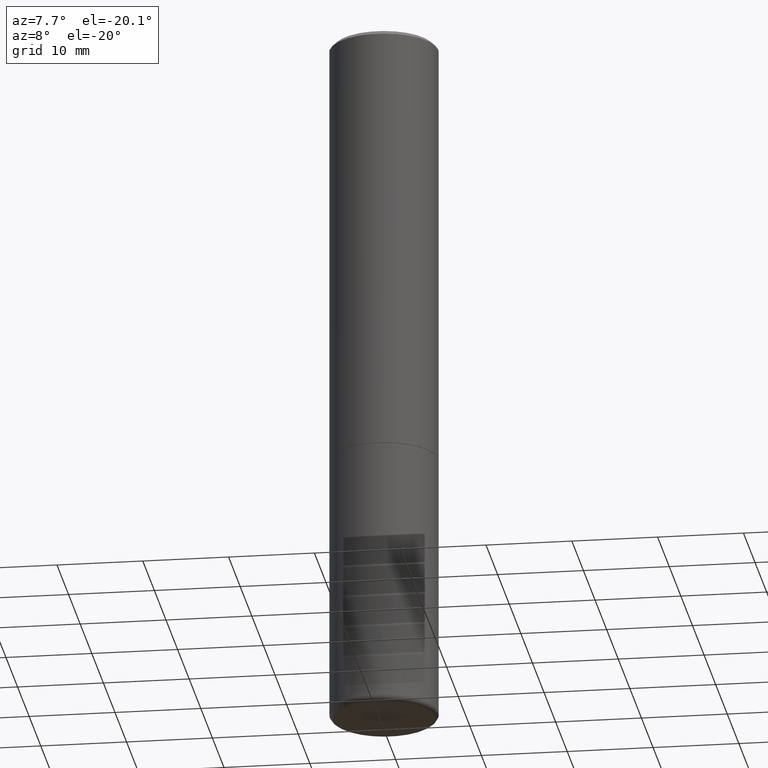
[diagram: clean part render]
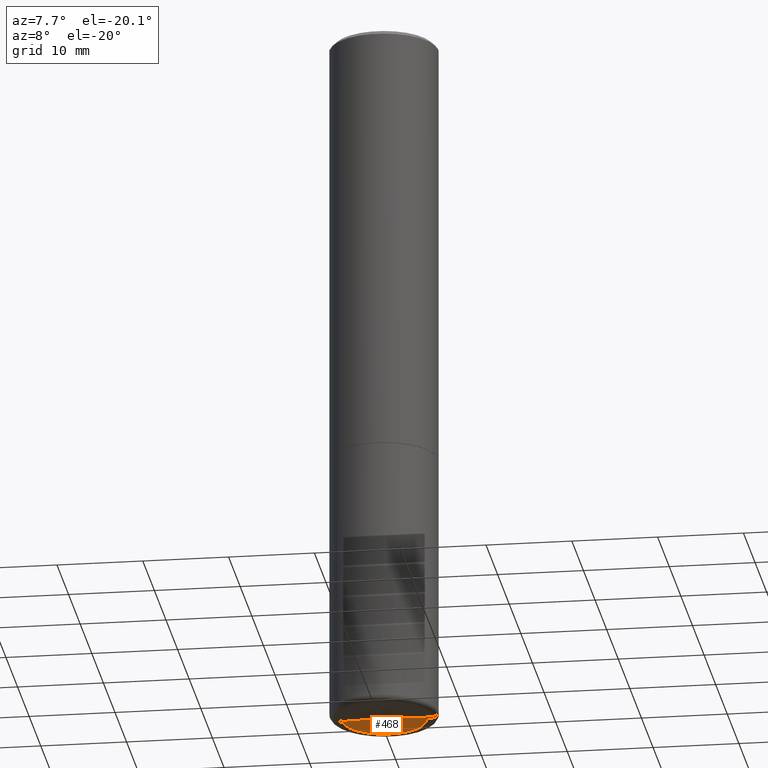
[diagram: same view with one face highlighted and labeled with its STEP entity id]
A machine part, auxiliary view. The second image highlights one B-rep face of the part: STEP entity #468.
In plain terms, the highlighted conical surface has half-angle 88 deg.
Its self-contained STEP definition (entity closure, byte-faithful):
#16 = EDGE_CURVE ( 'NONE', #115, #35, #80, .T. ) ;
#33 = CARTESIAN_POINT ( 'NONE',  ( 7.947204554791619182E-29, -1.134650187679537143E-14, -3.249767298070359800 ) ) ;
#35 = VERTEX_POINT ( 'NONE', #85 ) ;
#37 = ORIENTED_EDGE ( 'NONE', *, *, #16, .F. ) ;
#46 = DIRECTION ( 'NONE',  ( -2.445468806185136597E-29, 3.491481338843145583E-15, 1.000000000000000000 ) ) ;
#61 = DIRECTION ( 'NONE',  ( -0.9993908270190957621, 6.856857904024556470E-15, -0.03489949670250108021 ) ) ;
#66 = DIRECTION ( 'NONE',  ( 2.445468806185136597E-29, -3.491481338843145583E-15, -1.000000000000000000 ) ) ;
#67 = EDGE_LOOP ( 'NONE', ( #178, #361, #37 ) ) ;
#72 = LINE ( 'NONE', #269, #291 ) ;
#73 = VERTEX_POINT ( 'NONE', #474 ) ;
#77 = VECTOR ( 'NONE', #412, 39.37007874015748143 ) ;
#80 = CIRCLE ( 'NONE', #172, 0.1930732039350490925 ) ;
#85 = CARTESIAN_POINT ( 'NONE',  ( -0.1930732039350490925, -9.998278899655613929E-15, -3.249767298070359800 ) ) ;
#115 = VERTEX_POINT ( 'NONE', #201 ) ;
#172 = AXIS2_PLACEMENT_3D ( 'NONE', #459, #46, #233 ) ;
#178 = ORIENTED_EDGE ( 'NONE', *, *, #320, .F. ) ;
#201 = CARTESIAN_POINT ( 'NONE',  ( 0.1930732039350490925, -1.267108020581510942E-14, -3.249767298070359800 ) ) ;
#211 = DIRECTION ( 'NONE',  ( -1.000000000000000000, 6.982962677686269866E-15, 0.000000000000000000 ) ) ;
#225 = FACE_OUTER_BOUND ( 'NONE', #67, .T. ) ;
#233 = DIRECTION ( 'NONE',  ( 1.000000000000000000, -6.982962677686269866E-15, 0.000000000000000000 ) ) ;
#239 = CONICAL_SURFACE ( 'NONE', #489, 0.1930732039350490925, 1.535889741755009918 ) ;
#243 = EDGE_CURVE ( 'NONE', #73, #35, #72, .T. ) ;
#265 = CARTESIAN_POINT ( 'NONE',  ( 0.1930732039350490925, -1.267108020581510942E-14, -3.249767298070359800 ) ) ;
#269 = CARTESIAN_POINT ( 'NONE',  ( -0.1930732039350490925, -9.998278899655613929E-15, -3.249767298070359800 ) ) ;
#291 = VECTOR ( 'NONE', #61, 39.37007874015748143 ) ;
#320 = EDGE_CURVE ( 'NONE', #73, #115, #451, .T. ) ;
#361 = ORIENTED_EDGE ( 'NONE', *, *, #243, .T. ) ;
#412 = DIRECTION ( 'NONE',  ( 0.9993908270190957621, -6.978169709227541488E-15, -0.03489949670250108021 ) ) ;
#451 = LINE ( 'NONE', #265, #77 ) ;
#459 = CARTESIAN_POINT ( 'NONE',  ( 7.947204554791619182E-29, -1.134650187679537143E-14, -3.249767298070359800 ) ) ;
#468 = ADVANCED_FACE ( 'NONE', ( #225 ), #239, .F. ) ;
#474 = CARTESIAN_POINT ( 'NONE',  ( 7.930716556418764265E-29, -1.132296138489128416E-14, -3.243025033220710451 ) ) ;
#489 = AXIS2_PLACEMENT_3D ( 'NONE', #33, #66, #211 ) ;